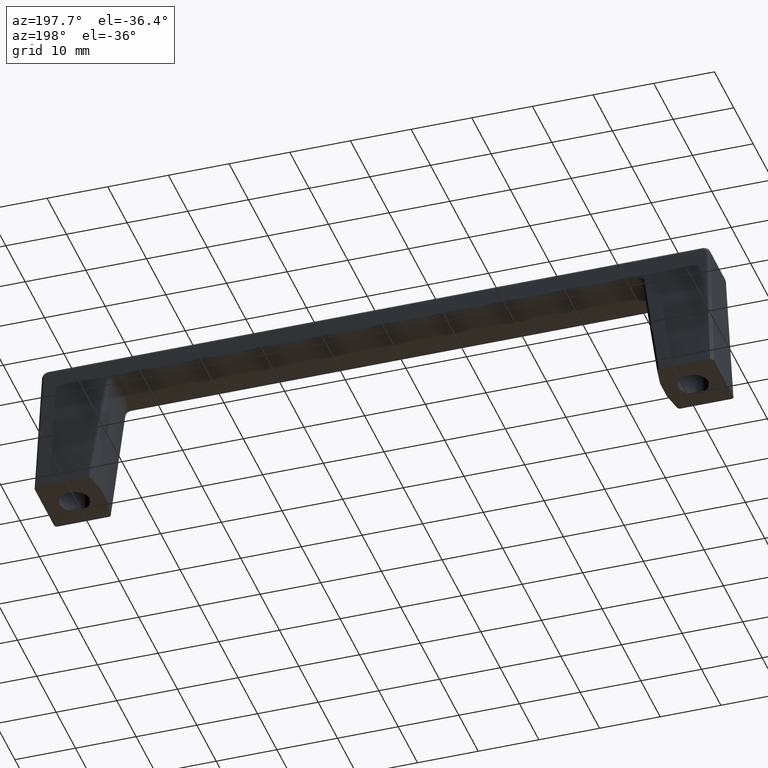
[diagram: clean part render]
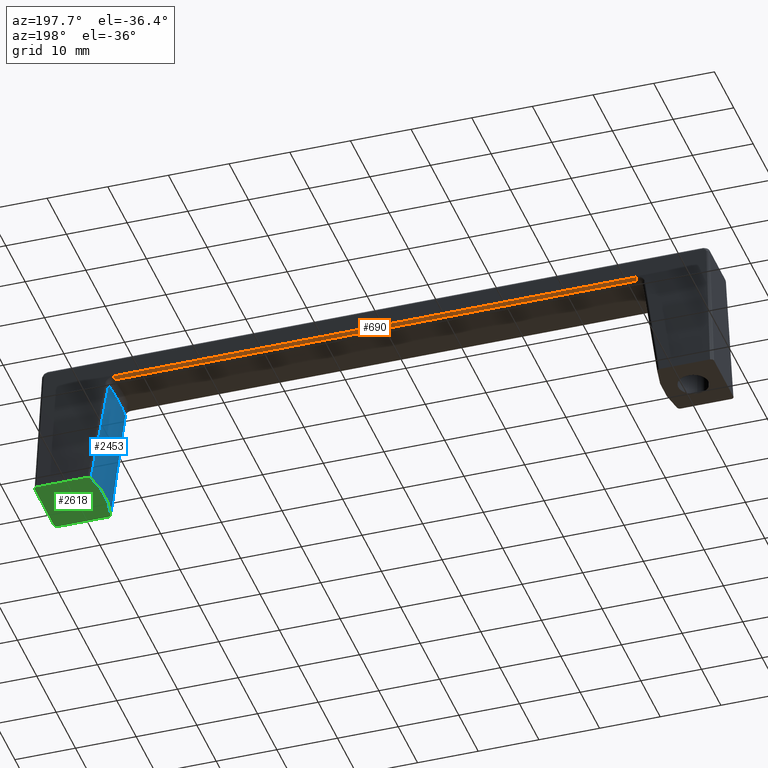
[diagram: same view with three faces highlighted in distinct colors, each labeled with its STEP entity id]
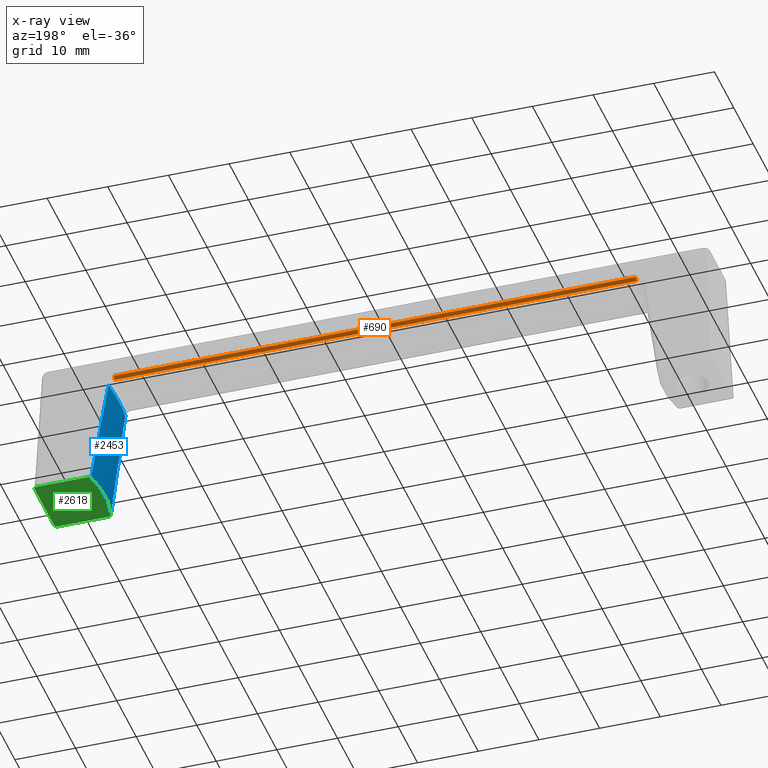
[diagram: x-ray of the same camera — body ghosted, the three highlighted faces saturated]
A machine part, auxiliary view with three faces highlighted in distinct colors.
The next image is the same camera in x-ray (body ghosted, the three faces saturated) — at least one of them is partly hidden behind the body in this view.
Their STEP definitions:

[orange] entity #690 — the highlighted face is a freeform B-spline surface patch.
#482=CARTESIAN_POINT('',(-43.046406854159947,4.653683965051670,19.468986024397850));
#483=VERTEX_POINT('',#482);
#484=CARTESIAN_POINT('',(-43.046406854159947,4.260520569106490,18.958716010956749));
#485=VERTEX_POINT('',#484);
#486=CARTESIAN_POINT('',(-43.046406854159947,4.653683965051670,19.468986024397850));
#487=CARTESIAN_POINT('',(-43.046406854159954,4.671971422250077,19.048294185988905));
#488=CARTESIAN_POINT('',(-43.046406854159947,4.260520569106485,18.958716010956771));
#496=(BOUNDED_CURVE()B_SPLINE_CURVE(2,(#486,#487,#488),.UNSPECIFIED.,.F.,.U.)CURVE()GEOMETRIC_REPRESENTATION_ITEM()QUASI_UNIFORM_CURVE()RATIONAL_B_SPLINE_CURVE((1.0,0.764883688851901,1.0))REPRESENTATION_ITEM(''));
#497=EDGE_CURVE('',#483,#485,#496,.T.);
#646=CARTESIAN_POINT('',(-45.198727196867992,4.652944370550322,19.482054708807340));
#647=CARTESIAN_POINT('',(45.252535205437582,4.652944370550322,19.482054708807340));
#648=CARTESIAN_POINT('',(-45.198727196867992,4.684817262214651,19.024999106176772));
#649=CARTESIAN_POINT('',(45.252535205437582,4.684817262214651,19.024999106176772));
#650=CARTESIAN_POINT('',(-45.198727196867992,4.232278799687474,18.953412479963671));
#651=CARTESIAN_POINT('',(45.252535205437582,4.232278799687474,18.953412479963671));
#659=(BOUNDED_SURFACE()B_SPLINE_SURFACE(1,2,((#646,#648,#650),(#647,#649,#651)),.UNSPECIFIED.,.F.,.F.,.U.)B_SPLINE_SURFACE_WITH_KNOTS((2,2),(3,3),(0.0,90.451262402305574),(0.0,1.0),.UNSPECIFIED.)GEOMETRIC_REPRESENTATION_ITEM()RATIONAL_B_SPLINE_SURFACE(((1.0,0.737277336810124,1.0),(1.0,0.737277336810124,1.0)))REPRESENTATION_ITEM('')SURFACE());
#660=CARTESIAN_POINT('',(43.046406854156103,4.653683965051670,19.468986024397850));
#661=VERTEX_POINT('',#660);
#662=CARTESIAN_POINT('',(43.046406854161852,4.260520569116130,18.958716010958849));
#663=VERTEX_POINT('',#662);
#664=CARTESIAN_POINT('',(43.046406854156103,4.653683965051670,19.468986024397850));
#665=CARTESIAN_POINT('',(43.046406854156096,4.671971422249709,19.048294185997335));
#666=CARTESIAN_POINT('',(43.046406854161852,4.260520569116130,18.958716010958849));
#674=(BOUNDED_CURVE()B_SPLINE_CURVE(2,(#664,#665,#666),.UNSPECIFIED.,.F.,.U.)CURVE()GEOMETRIC_REPRESENTATION_ITEM()QUASI_UNIFORM_CURVE()RATIONAL_B_SPLINE_CURVE((1.0,0.764883688858256,1.0))REPRESENTATION_ITEM(''));
#675=EDGE_CURVE('',#661,#663,#674,.T.);
#676=ORIENTED_EDGE('',*,*,#675,.T.);
#677=CARTESIAN_POINT('',(-43.046406854159947,4.260520569106490,18.958716010956749));
#678=CARTESIAN_POINT('',(43.046406854161852,4.260520569116130,18.958716010958849));
#679=QUASI_UNIFORM_CURVE('',1,(#677,#678),.UNSPECIFIED.,.F.,.U.);
#680=EDGE_CURVE('',#485,#663,#679,.T.);
#681=ORIENTED_EDGE('',*,*,#680,.F.);
#682=ORIENTED_EDGE('',*,*,#497,.F.);
#683=CARTESIAN_POINT('',(43.046406854156103,4.653683965051670,19.468986024397850));
#684=CARTESIAN_POINT('',(-43.046406854159947,4.653683965051670,19.468986024397850));
#685=QUASI_UNIFORM_CURVE('',1,(#683,#684),.UNSPECIFIED.,.F.,.U.);
#686=EDGE_CURVE('',#661,#483,#685,.T.);
#687=ORIENTED_EDGE('',*,*,#686,.F.);
#688=EDGE_LOOP('',(#676,#681,#682,#687));
#689=FACE_OUTER_BOUND('',#688,.T.);
#690=ADVANCED_FACE('',(#689),#659,.T.);

[blue] entity #2453 — the highlighted face is a freeform B-spline surface patch.
#761=CARTESIAN_POINT('',(44.025375034663547,4.316532804530260,18.125262029344899));
#762=VERTEX_POINT('',#761);
#854=CARTESIAN_POINT('',(46.672518230818703,5.124638069109460,0.0));
#855=VERTEX_POINT('',#854);
#879=CARTESIAN_POINT('',(44.025375034663547,4.316532804530260,18.125262029344899));
#880=CARTESIAN_POINT('',(45.346653020283952,4.722620256158532,9.016961681051191));
#881=CARTESIAN_POINT('',(46.672518230818703,5.124638069109460,0.0));
#889=(BOUNDED_CURVE()B_SPLINE_CURVE(2,(#879,#880,#881),.UNSPECIFIED.,.F.,.U.)CURVE()GEOMETRIC_REPRESENTATION_ITEM()QUASI_UNIFORM_CURVE()RATIONAL_B_SPLINE_CURVE((1.0,0.999784543489152,1.0))REPRESENTATION_ITEM(''));
#890=EDGE_CURVE('',#762,#855,#889,.T.);
#994=CARTESIAN_POINT('',(44.025375034663547,-4.316532804530024,18.125262029344899));
#995=VERTEX_POINT('',#994);
#1090=CARTESIAN_POINT('',(46.672518230818703,-5.124638069109460,0.0));
#1091=VERTEX_POINT('',#1090);
#1127=CARTESIAN_POINT('',(46.672518230818710,-5.124638069109461,6.938894E-014));
#1128=CARTESIAN_POINT('',(45.346653020284386,-4.722620256158570,9.016961681047903));
#1129=CARTESIAN_POINT('',(44.025375034663547,-4.316532804530024,18.125262029344899));
#1137=(BOUNDED_CURVE()B_SPLINE_CURVE(2,(#1127,#1128,#1129),.UNSPECIFIED.,.F.,.U.)CURVE()GEOMETRIC_REPRESENTATION_ITEM()QUASI_UNIFORM_CURVE()RATIONAL_B_SPLINE_CURVE((1.0,0.999784543487856,1.0))REPRESENTATION_ITEM(''));
#1138=EDGE_CURVE('',#1091,#995,#1137,.T.);
#2336=CARTESIAN_POINT('',(44.025375034663483,-4.316532804530033,18.125262029344889));
#2337=CARTESIAN_POINT('',(43.890805697046069,-3.614111721607757,17.963525301865630));
#2338=CARTESIAN_POINT('',(43.789127518071993,-2.904094587082519,17.841320377908250));
#2339=CARTESIAN_POINT('',(43.652294399512193,-1.468697225426513,17.676863566936809));
#2340=CARTESIAN_POINT('',(43.617127791727242,-0.743319692605962,17.634597659492702));
#2341=CARTESIAN_POINT('',(43.616774007499110,0.081784981580069,17.634172454374969));
#2342=CARTESIAN_POINT('',(43.617281014310933,0.173589446470988,17.634781814180581));
#2343=CARTESIAN_POINT('',(43.619397036247257,0.357452877093216,17.637325012276541));
#2344=CARTESIAN_POINT('',(43.621008585995263,0.449587453019517,17.639261896872771));
#2345=CARTESIAN_POINT('',(43.627482843314993,0.725351784141337,17.647043158350488));
#2346=CARTESIAN_POINT('',(43.633984039556573,0.908593823842470,17.654856797447639));
#2347=CARTESIAN_POINT('',(43.659937661219040,1.456546283632933,17.686049868798129));
#2348=CARTESIAN_POINT('',(43.685834906433058,1.819484478123061,17.717175188217329));
#2349=CARTESIAN_POINT('',(43.788670286804589,2.901384935217238,17.840770840701499));
#2350=CARTESIAN_POINT('',(43.890679504994182,3.613453028035424,17.963373633663441));
#2351=CARTESIAN_POINT('',(44.025375034663497,4.316532804530263,18.125262029344910));
#2352=B_SPLINE_CURVE_WITH_KNOTS('',3,(#2336,#2337,#2338,#2339,#2340,#2341,#2342,#2343,#2344,#2345,#2346,#2347,#2348,#2349,#2350,#2351),.UNSPECIFIED.,.F.,.U.,(4,2,2,2,2,2,2,4),(0.0,0.250000000000000,0.500000000000000,0.531250000000000,0.562500000000000,0.625000000000000,0.750000000000000,1.0),.UNSPECIFIED.);
#2353=EDGE_CURVE('',#995,#762,#2352,.T.);
#2421=CARTESIAN_POINT('',(44.293667713707997,5.615437608368443,18.623592142543366));
#2422=CARTESIAN_POINT('',(46.870738529752849,5.615437608368443,-0.446840040159133));
#2423=CARTESIAN_POINT('',(42.667888686313781,-0.001677418723913,18.403893519843258));
#2424=CARTESIAN_POINT('',(45.244959502358626,-0.001677418723916,-0.666538662859235));
#2425=CARTESIAN_POINT('',(44.294562622294663,-5.618528620891472,18.623713075450368));
#2426=CARTESIAN_POINT('',(46.871633438339501,-5.618528620891476,-0.446719107252129));
#2434=(BOUNDED_SURFACE()B_SPLINE_SURFACE(1,2,((#2421,#2423,#2425),(#2422,#2424,#2426)),.UNSPECIFIED.,.F.,.F.,.U.)B_SPLINE_SURFACE_WITH_KNOTS((2,2),(3,3),(0.0,19.243769839248380),(0.0,11.463930764930449),.UNSPECIFIED.)GEOMETRIC_REPRESENTATION_ITEM()RATIONAL_B_SPLINE_SURFACE(((0.998920908494155,0.955685238360306,0.992360272837850),(0.998920908494155,0.955685238360306,0.992360272837850)))REPRESENTATION_ITEM('')SURFACE());
#2435=ORIENTED_EDGE('',*,*,#2353,.T.);
#2436=ORIENTED_EDGE('',*,*,#890,.T.);
#2437=CARTESIAN_POINT('',(46.672518230818682,-5.124638069109459,0.0));
#2438=CARTESIAN_POINT('',(45.303920813448492,1.140893E-013,0.0));
#2439=CARTESIAN_POINT('',(46.672518230818703,5.124638069109460,0.0));
#2447=(BOUNDED_CURVE()B_SPLINE_CURVE(2,(#2437,#2438,#2439),.UNSPECIFIED.,.F.,.U.)CURVE()GEOMETRIC_REPRESENTATION_ITEM()QUASI_UNIFORM_CURVE()RATIONAL_B_SPLINE_CURVE((1.0,0.966716987401942,1.0))REPRESENTATION_ITEM(''));
#2448=EDGE_CURVE('',#1091,#855,#2447,.T.);
#2449=ORIENTED_EDGE('',*,*,#2448,.F.);
#2450=ORIENTED_EDGE('',*,*,#1138,.T.);
#2451=EDGE_LOOP('',(#2435,#2436,#2449,#2450));
#2452=FACE_OUTER_BOUND('',#2451,.T.);
#2453=ADVANCED_FACE('',(#2452),#2434,.T.);

[green] entity #2618 — the highlighted face is a freeform B-spline surface patch.
#79=CARTESIAN_POINT('',(51.196147739365173,2.492293334329234,-2.636780E-016));
#80=VERTEX_POINT('',#79);
#86=CARTESIAN_POINT('',(53.500000000000000,0.0,0.0));
#87=VERTEX_POINT('',#86);
#88=CARTESIAN_POINT('',(53.500000000000000,0.0,0.0));
#89=CARTESIAN_POINT('',(53.500000000000021,2.310976229060770,0.0));
#90=CARTESIAN_POINT('',(51.196147739365166,2.492293334329234,-2.636780E-016));
#98=(BOUNDED_CURVE()B_SPLINE_CURVE(2,(#88,#89,#90),.UNSPECIFIED.,.F.,.U.)B_SPLINE_CURVE_WITH_KNOTS((3,3),(0.0,0.236331300626500),.UNSPECIFIED.)CURVE()GEOMETRIC_REPRESENTATION_ITEM()RATIONAL_B_SPLINE_CURVE((1.0,0.723120658612539,0.969723356158737))REPRESENTATION_ITEM(''));
#99=EDGE_CURVE('',#87,#80,#98,.T.);
#101=CARTESIAN_POINT('',(50.803852260634827,-2.492293334329234,-2.636780E-016));
#102=VERTEX_POINT('',#101);
#103=CARTESIAN_POINT('',(50.803852260634827,-2.492293334329234,-2.636780E-016));
#104=CARTESIAN_POINT('',(50.901774732435058,-2.499999999999999,0.0));
#105=CARTESIAN_POINT('',(51.0,-2.500000000000000,0.0));
#106=CARTESIAN_POINT('',(53.500000000000007,-2.500000000000000,0.0));
#107=CARTESIAN_POINT('',(53.500000000000000,0.0,0.0));
#115=(BOUNDED_CURVE()B_SPLINE_CURVE(2,(#103,#104,#105,#106,#107),.UNSPECIFIED.,.F.,.U.)B_SPLINE_CURVE_WITH_KNOTS((3,2,3),(0.736331300626500,0.750000000000000,1.0),.UNSPECIFIED.)CURVE()GEOMETRIC_REPRESENTATION_ITEM()RATIONAL_B_SPLINE_CURVE((0.969723356158736,0.983986122574008,1.0,0.707106781186548,1.0))REPRESENTATION_ITEM(''));
#116=EDGE_CURVE('',#102,#87,#115,.T.);
#192=CARTESIAN_POINT('',(48.499999999999993,0.0,0.0));
#193=VERTEX_POINT('',#192);
#194=CARTESIAN_POINT('',(48.499999999999993,0.0,0.0));
#195=CARTESIAN_POINT('',(48.499999999999986,-2.310976229060772,0.0));
#196=CARTESIAN_POINT('',(50.803852260634827,-2.492293334329233,-2.636780E-016));
#204=(BOUNDED_CURVE()B_SPLINE_CURVE(2,(#194,#195,#196),.UNSPECIFIED.,.F.,.U.)B_SPLINE_CURVE_WITH_KNOTS((3,3),(0.500000000000000,0.736331300626500),.UNSPECIFIED.)CURVE()GEOMETRIC_REPRESENTATION_ITEM()RATIONAL_B_SPLINE_CURVE((1.0,0.723120658612539,0.969723356158737))REPRESENTATION_ITEM(''));
#205=EDGE_CURVE('',#193,#102,#204,.T.);
#207=CARTESIAN_POINT('',(51.196147739365173,2.492293334329234,-2.636780E-016));
#208=CARTESIAN_POINT('',(51.098225267564949,2.500000000000000,0.0));
#209=CARTESIAN_POINT('',(51.0,2.500000000000000,0.0));
#210=CARTESIAN_POINT('',(48.500000000000007,2.500000000000000,0.0));
#211=CARTESIAN_POINT('',(48.499999999999993,0.0,0.0));
#219=(BOUNDED_CURVE()B_SPLINE_CURVE(2,(#207,#208,#209,#210,#211),.UNSPECIFIED.,.F.,.U.)B_SPLINE_CURVE_WITH_KNOTS((3,2,3),(0.236331300626500,0.250000000000000,0.500000000000000),.UNSPECIFIED.)CURVE()GEOMETRIC_REPRESENTATION_ITEM()RATIONAL_B_SPLINE_CURVE((0.969723356158736,0.983986122574008,1.0,0.707106781186548,1.0))REPRESENTATION_ITEM(''));
#220=EDGE_CURVE('',#80,#193,#219,.T.);
#854=CARTESIAN_POINT('',(46.672518230818703,5.124638069109460,0.0));
#855=VERTEX_POINT('',#854);
#856=CARTESIAN_POINT('',(47.164208459857697,5.500000000000000,0.0));
#857=VERTEX_POINT('',#856);
#858=CARTESIAN_POINT('',(46.672518230818703,5.124638069109460,1.276535E-016));
#859=CARTESIAN_POINT('',(46.679725063201403,5.151623658236923,1.276535E-016));
#860=CARTESIAN_POINT('',(46.689120385056981,5.177775965458251,-9.510765E-033));
#861=CARTESIAN_POINT('',(46.712221886948129,5.228439192009442,0.0));
#862=CARTESIAN_POINT('',(46.725898876413240,5.252797803459297,0.0));
#863=CARTESIAN_POINT('',(46.756713870865632,5.298496080362505,0.0));
#864=CARTESIAN_POINT('',(46.773928474942792,5.320013652248208,0.0));
#865=CARTESIAN_POINT('',(46.812024260626437,5.360347078604925,0.0));
#866=CARTESIAN_POINT('',(46.832881498390208,5.379064475761878,0.0));
#867=CARTESIAN_POINT('',(46.876774723783242,5.412444714926626,0.0));
#868=CARTESIAN_POINT('',(46.899979180642539,5.427298275593568,0.0));
#869=CARTESIAN_POINT('',(46.948934916719118,5.453286820774665,0.0));
#870=CARTESIAN_POINT('',(46.974711460671607,5.464373516427162,0.0));
#871=CARTESIAN_POINT('',(47.026982646730673,5.481999059646609,0.0));
#872=CARTESIAN_POINT('',(47.053700601311242,5.488670492131727,0.0));
#873=CARTESIAN_POINT('',(47.108313843240992,5.497684313202041,0.0));
#874=CARTESIAN_POINT('',(47.136282365098609,5.500000000000000,0.0));
#875=CARTESIAN_POINT('',(47.164208459857697,5.500000000000000,0.0));
#876=B_SPLINE_CURVE_WITH_KNOTS('',3,(#858,#859,#860,#861,#862,#863,#864,#865,#866,#867,#868,#869,#870,#871,#872,#873,#874,#875),.UNSPECIFIED.,.F.,.U.,(4,2,2,2,2,2,2,2,4),(0.0,0.125000000000000,0.250000000000000,0.375000000000000,0.500000000000000,0.625000000000000,0.750000000000000,0.875000000000000,1.0),.UNSPECIFIED.);
#877=EDGE_CURVE('',#855,#857,#876,.T.);
#1088=CARTESIAN_POINT('',(47.164208459857797,-5.500000000000000,0.0));
#1089=VERTEX_POINT('',#1088);
#1090=CARTESIAN_POINT('',(46.672518230818703,-5.124638069109460,0.0));
#1091=VERTEX_POINT('',#1090);
#1092=CARTESIAN_POINT('',(47.164208459857797,-5.500000000000000,0.0));
#1093=CARTESIAN_POINT('',(47.136277066723729,-5.499999999999997,-6.695851E-013));
#1094=CARTESIAN_POINT('',(47.108576683420523,-5.497722239387938,2.465190E-029));
#1095=CARTESIAN_POINT('',(47.053632511243777,-5.488664689812947,0.0));
#1096=CARTESIAN_POINT('',(47.026531608732341,-5.481872264636104,0.0));
#1097=CARTESIAN_POINT('',(46.974312480072797,-5.464213275032968,0.0));
#1098=CARTESIAN_POINT('',(46.949005181599013,-5.453320050936635,0.0));
#1099=CARTESIAN_POINT('',(46.900025841778643,-5.427327106838967,0.0));
#1100=CARTESIAN_POINT('',(46.876402537796153,-5.412192366823073,0.0));
#1101=CARTESIAN_POINT('',(46.832529438701187,-5.378765533509550,0.0));
#1102=CARTESIAN_POINT('',(46.812043437854733,-5.360361028280880,0.0));
#1103=CARTESIAN_POINT('',(46.774018927487617,-5.320115753399278,0.0));
#1104=CARTESIAN_POINT('',(46.756463448985279,-5.298168594207842,0.0));
#1105=CARTESIAN_POINT('',(46.725643972634842,-5.252375172527929,0.0));
#1106=CARTESIAN_POINT('',(46.712189316714657,-5.228354624898314,0.0));
#1107=CARTESIAN_POINT('',(46.689234880974851,-5.178040154568095,0.0));
#1108=CARTESIAN_POINT('',(46.679726597839782,-5.151629404606251,0.0));
#1109=CARTESIAN_POINT('',(46.672518230818703,-5.124638069109470,0.0));
#1110=B_SPLINE_CURVE_WITH_KNOTS('',3,(#1092,#1093,#1094,#1095,#1096,#1097,#1098,#1099,#1100,#1101,#1102,#1103,#1104,#1105,#1106,#1107,#1108,#1109),.UNSPECIFIED.,.F.,.U.,(4,2,2,2,2,2,2,2,4),(0.0,0.125000000000000,0.250000000000000,0.375000000000000,0.500000000000000,0.625000000000000,0.750000000000000,0.875000000000000,1.0),.UNSPECIFIED.);
#1111=EDGE_CURVE('',#1089,#1091,#1110,.T.);
#1408=CARTESIAN_POINT('',(55.999800000000000,-5.000471523240460,0.0));
#1409=VERTEX_POINT('',#1408);
#1410=CARTESIAN_POINT('',(55.500271740861400,-5.500000000000000,0.0));
#1411=VERTEX_POINT('',#1410);
#1412=CARTESIAN_POINT('',(55.999800000000008,-5.000471523240469,0.0));
#1413=CARTESIAN_POINT('',(55.999800000000015,-5.500000000000061,0.0));
#1414=CARTESIAN_POINT('',(55.500271740861393,-5.500000000000005,0.0));
#1422=(BOUNDED_CURVE()B_SPLINE_CURVE(2,(#1412,#1413,#1414),.UNSPECIFIED.,.F.,.U.)CURVE()GEOMETRIC_REPRESENTATION_ITEM()QUASI_UNIFORM_CURVE()RATIONAL_B_SPLINE_CURVE((1.0,0.707773141093530,1.0))REPRESENTATION_ITEM(''));
#1423=EDGE_CURVE('',#1409,#1411,#1422,.T.);
#1769=CARTESIAN_POINT('',(55.500271740861201,5.500000000000000,0.0));
#1770=VERTEX_POINT('',#1769);
#1771=CARTESIAN_POINT('',(55.999800000000000,5.000471523240460,0.0));
#1772=VERTEX_POINT('',#1771);
#1773=CARTESIAN_POINT('',(55.500271740861251,5.499999999999954,0.0));
#1774=CARTESIAN_POINT('',(55.999799999999944,5.499999999999957,0.0));
#1775=CARTESIAN_POINT('',(55.999800000000000,5.000471523240460,0.0));
#1783=(BOUNDED_CURVE()B_SPLINE_CURVE(2,(#1773,#1774,#1775),.UNSPECIFIED.,.F.,.U.)CURVE()GEOMETRIC_REPRESENTATION_ITEM()QUASI_UNIFORM_CURVE()RATIONAL_B_SPLINE_CURVE((1.0,0.707773141093465,1.0))REPRESENTATION_ITEM(''));
#1784=EDGE_CURVE('',#1770,#1772,#1783,.T.);
#2437=CARTESIAN_POINT('',(46.672518230818682,-5.124638069109459,0.0));
#2438=CARTESIAN_POINT('',(45.303920813448492,1.140893E-013,0.0));
#2439=CARTESIAN_POINT('',(46.672518230818703,5.124638069109460,0.0));
#2447=(BOUNDED_CURVE()B_SPLINE_CURVE(2,(#2437,#2438,#2439),.UNSPECIFIED.,.F.,.U.)CURVE()GEOMETRIC_REPRESENTATION_ITEM()QUASI_UNIFORM_CURVE()RATIONAL_B_SPLINE_CURVE((1.0,0.966716987401942,1.0))REPRESENTATION_ITEM(''));
#2448=EDGE_CURVE('',#1091,#855,#2447,.T.);
#2482=CARTESIAN_POINT('',(55.500271740861400,-5.500000000000000,0.0));
#2483=CARTESIAN_POINT('',(47.164208459857797,-5.500000000000000,0.0));
#2484=QUASI_UNIFORM_CURVE('',1,(#2482,#2483),.UNSPECIFIED.,.F.,.U.);
#2485=EDGE_CURVE('',#1411,#1089,#2484,.T.);
#2520=CARTESIAN_POINT('',(55.500271740861201,5.500000000000000,0.0));
#2521=CARTESIAN_POINT('',(47.164208459857697,5.500000000000000,0.0));
#2522=QUASI_UNIFORM_CURVE('',1,(#2520,#2521),.UNSPECIFIED.,.F.,.U.);
#2523=EDGE_CURVE('',#1770,#857,#2522,.T.);
#2562=CARTESIAN_POINT('',(55.999800000000000,5.000471523240460,0.0));
#2563=CARTESIAN_POINT('',(55.999800000000000,-5.000471523240460,0.0));
#2564=QUASI_UNIFORM_CURVE('',1,(#2562,#2563),.UNSPECIFIED.,.F.,.U.);
#2565=EDGE_CURVE('',#1772,#1409,#2564,.T.);
#2597=CARTESIAN_POINT('',(45.500301637639062,-6.049449978679865,0.0));
#2598=CARTESIAN_POINT('',(56.499301670418689,-6.049449978679865,0.0));
#2599=CARTESIAN_POINT('',(45.500301637639062,6.049450273722857,0.0));
#2600=CARTESIAN_POINT('',(56.499301670418689,6.049450273722857,0.0));
#2601=B_SPLINE_SURFACE_WITH_KNOTS('',1,1,((#2597,#2599),(#2598,#2600)),.UNSPECIFIED.,.F.,.F.,.U.,(2,2),(2,2),(0.0,10.999000032779630),(0.0,12.098900252402720),.UNSPECIFIED.);
#2602=ORIENTED_EDGE('',*,*,#2448,.T.);
#2603=ORIENTED_EDGE('',*,*,#877,.T.);
#2604=ORIENTED_EDGE('',*,*,#2523,.F.);
#2605=ORIENTED_EDGE('',*,*,#1784,.T.);
#2606=ORIENTED_EDGE('',*,*,#2565,.T.);
#2607=ORIENTED_EDGE('',*,*,#1423,.T.);
#2608=ORIENTED_EDGE('',*,*,#2485,.T.);
#2609=ORIENTED_EDGE('',*,*,#1111,.T.);
#2610=EDGE_LOOP('',(#2602,#2603,#2604,#2605,#2606,#2607,#2608,#2609));
#2611=FACE_OUTER_BOUND('',#2610,.T.);
#2612=ORIENTED_EDGE('',*,*,#205,.T.);
#2613=ORIENTED_EDGE('',*,*,#116,.T.);
#2614=ORIENTED_EDGE('',*,*,#99,.T.);
#2615=ORIENTED_EDGE('',*,*,#220,.T.);
#2616=EDGE_LOOP('',(#2612,#2613,#2614,#2615));
#2617=FACE_BOUND('',#2616,.T.);
#2618=ADVANCED_FACE('',(#2611,#2617),#2601,.F.);